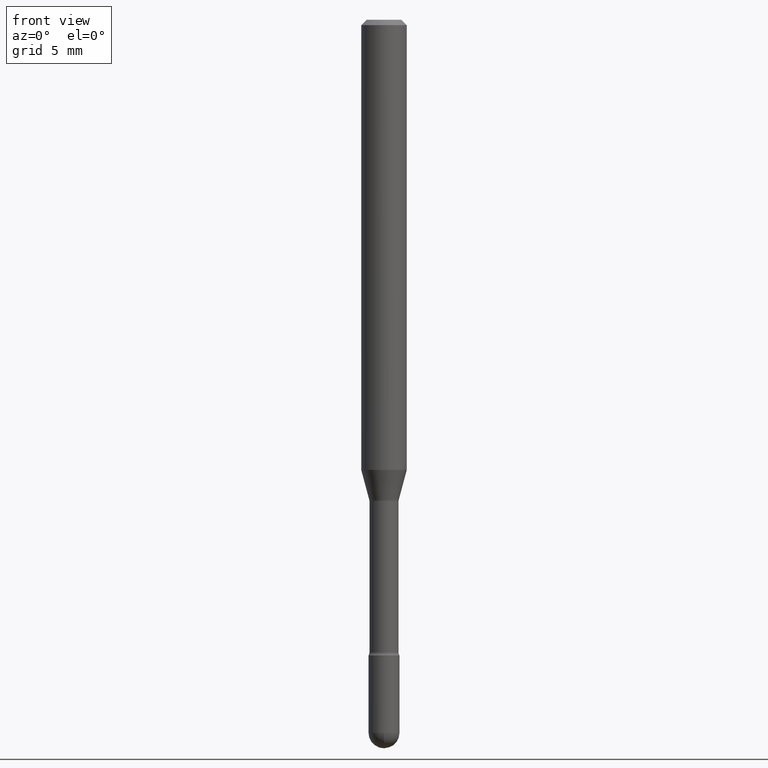
[diagram: clean part render]
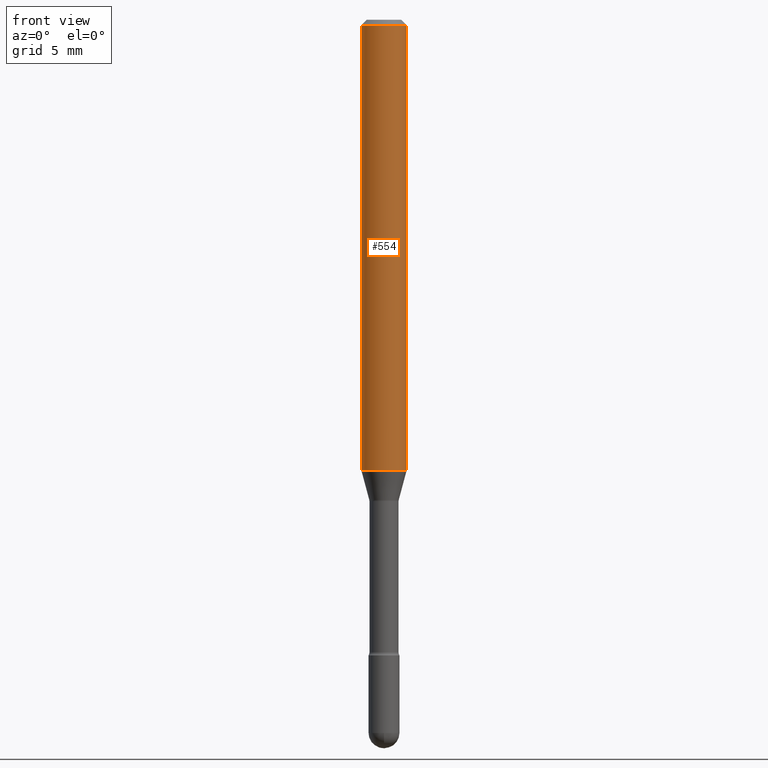
[diagram: same view with one face highlighted and labeled with its STEP entity id]
A machine part, front view. The second image highlights one B-rep face of the part: STEP entity #554.
In plain terms, the highlighted cylindrical surface (edge-blend (fillet) strip) has radius 1.5875 mm, axis along (-0, 0, 1).
Its self-contained STEP definition (entity closure, byte-faithful):
#11 = DIRECTION ( 'NONE',  ( -2.445468806185136597E-29, 3.491481338843145583E-15, 1.000000000000000000 ) ) ;
#19 = LINE ( 'NONE', #488, #113 ) ;
#24 = CYLINDRICAL_SURFACE ( 'NONE', #439, 0.06250000000000000000 ) ;
#30 = FACE_OUTER_BOUND ( 'NONE', #130, .T. ) ;
#113 = VECTOR ( 'NONE', #493, 39.37007874015748143 ) ;
#124 = CARTESIAN_POINT ( 'NONE',  ( -1.169113584055446105E-44, 1.669184350826100908E-30, 4.780733988912460139E-16 ) ) ;
#130 = EDGE_LOOP ( 'NONE', ( #199, #490, #475, #446 ) ) ;
#141 = VECTOR ( 'NONE', #154, 39.37007874015748143 ) ;
#143 = VERTEX_POINT ( 'NONE', #306 ) ;
#150 = DIRECTION ( 'NONE',  ( 1.000000000000000000, -6.982962677686266711E-15, 4.852736867747366207E-29 ) ) ;
#154 = DIRECTION ( 'NONE',  ( -2.445468806185136877E-29, 3.491481338843145188E-15, 1.000000000000000000 ) ) ;
#171 = DIRECTION ( 'NONE',  ( -2.445468806185136597E-29, 3.491481338843145583E-15, 1.000000000000000000 ) ) ;
#197 = DIRECTION ( 'NONE',  ( -2.445468806185136597E-29, 3.491481338843145583E-15, 1.000000000000000000 ) ) ;
#199 = ORIENTED_EDGE ( 'NONE', *, *, #465, .F. ) ;
#203 = AXIS2_PLACEMENT_3D ( 'NONE', #546, #11, #541 ) ;
#231 = EDGE_CURVE ( 'NONE', #338, #367, #456, .T. ) ;
#263 = CARTESIAN_POINT ( 'NONE',  ( 3.668203209277725232E-31, -5.237222008264747365E-17, -0.01500000000000008271 ) ) ;
#294 = CARTESIAN_POINT ( 'NONE',  ( 0.06250000000000000000, -4.888073874380391431E-16, -0.01500000000000008271 ) ) ;
#306 = CARTESIAN_POINT ( 'NONE',  ( 0.06250000000000000000, -4.751355335960405821E-15, -1.235842254289322151 ) ) ;
#338 = VERTEX_POINT ( 'NONE', #501 ) ;
#367 = VERTEX_POINT ( 'NONE', #294 ) ;
#395 = CARTESIAN_POINT ( 'NONE',  ( -0.06250000000000000000, -3.870830958754951536E-15, -1.235842254289322151 ) ) ;
#439 = AXIS2_PLACEMENT_3D ( 'NONE', #124, #197, #150 ) ;
#444 = DIRECTION ( 'NONE',  ( 1.000000000000000000, -6.982962677686266711E-15, 0.000000000000000000 ) ) ;
#446 = ORIENTED_EDGE ( 'NONE', *, *, #231, .F. ) ;
#453 = CIRCLE ( 'NONE', #203, 0.06250000000000000000 ) ;
#456 = CIRCLE ( 'NONE', #561, 0.06250000000000000000 ) ;
#464 = VERTEX_POINT ( 'NONE', #395 ) ;
#465 = EDGE_CURVE ( 'NONE', #464, #338, #19, .T. ) ;
#475 = ORIENTED_EDGE ( 'NONE', *, *, #528, .T. ) ;
#485 = EDGE_CURVE ( 'NONE', #464, #143, #453, .T. ) ;
#488 = CARTESIAN_POINT ( 'NONE',  ( -0.06250000000000000000, 4.440892098500642925E-16, 4.780733988912429571E-16 ) ) ;
#490 = ORIENTED_EDGE ( 'NONE', *, *, #485, .T. ) ;
#493 = DIRECTION ( 'NONE',  ( -2.445468806185136877E-29, 3.491481338843145188E-15, 1.000000000000000000 ) ) ;
#501 = CARTESIAN_POINT ( 'NONE',  ( -0.06250000000000000000, -1.739556984493767999E-15, -0.01500000000000008271 ) ) ;
#528 = EDGE_CURVE ( 'NONE', #143, #367, #555, .T. ) ;
#541 = DIRECTION ( 'NONE',  ( 1.000000000000000000, -6.982962677686270655E-15, 0.000000000000000000 ) ) ;
#546 = CARTESIAN_POINT ( 'NONE',  ( 3.022213682230056525E-29, -4.314920168605014152E-15, -1.235842254289322151 ) ) ;
#554 = ADVANCED_FACE ( 'NONE', ( #30 ), #24, .T. ) ;
#555 = LINE ( 'NONE', #559, #141 ) ;
#559 = CARTESIAN_POINT ( 'NONE',  ( 0.06250000000000000000, -4.364351673553899931E-16, 4.780733988912490708E-16 ) ) ;
#561 = AXIS2_PLACEMENT_3D ( 'NONE', #263, #171, #444 ) ;